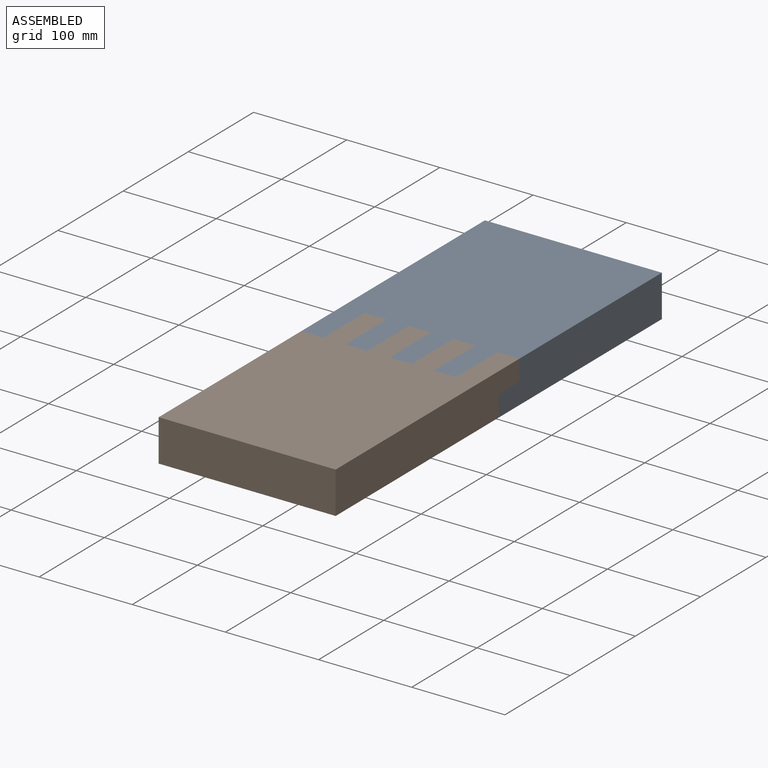
[diagram: assembled view]
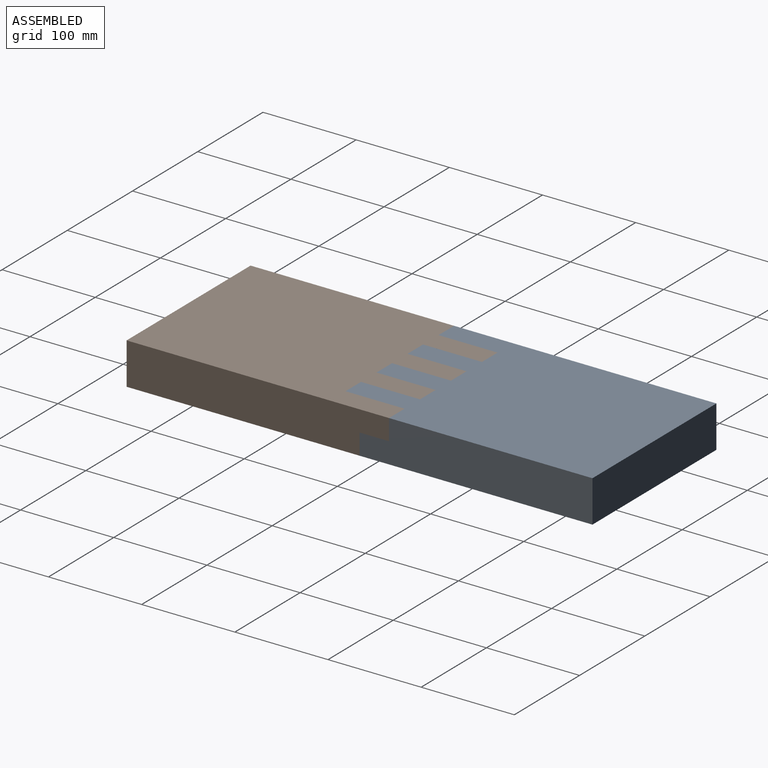
[diagram: assembled view, second angle]
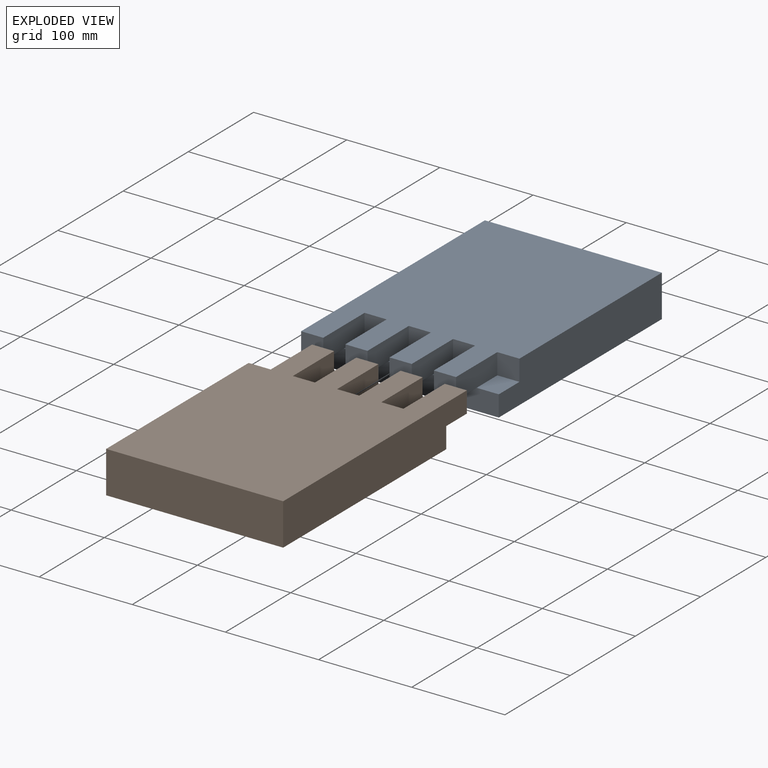
[diagram: exploded view]
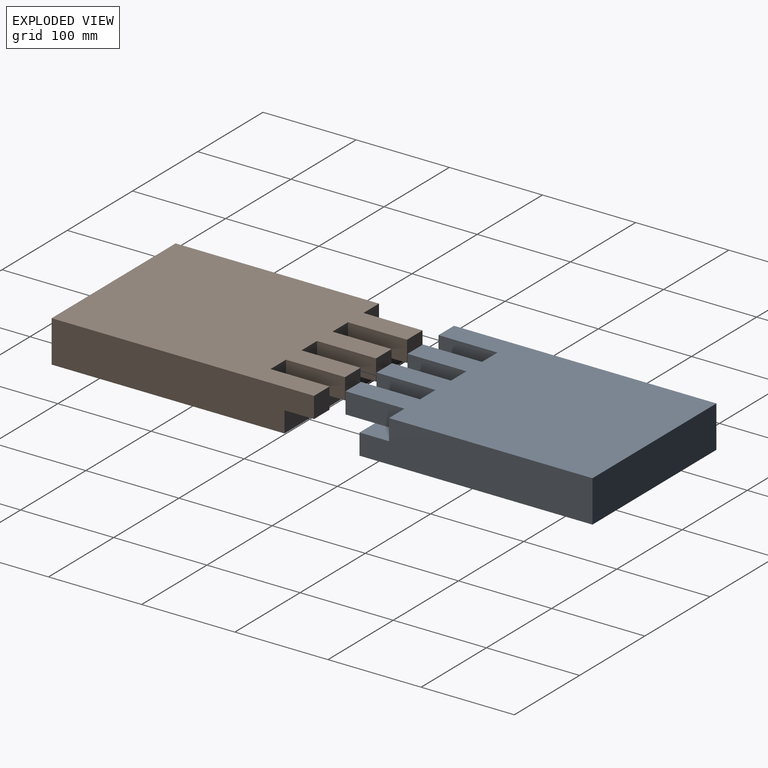
[diagram: exploded view, second angle]
ASSEMBLY  parts=2 mates=4
PART A: 29 faces, bbox 190x281.7x45 mm
  f0: plane 31.67x23.75mm, normal (0,0,-1), area 752.1mm2, adj f3,f4,f5,f26
  f1: plane 31.67x23.75mm, normal (0,0,-1), area 752.1mm2, adj f7,f8,f9,f26
  f2: plane 31.67x23.75mm, normal (0,0,-1), area 752.1mm2, adj f11,f12,f13,f26
  f3: plane 281.67x45mm, normal (-1,0,0), area 11962.5mm2, adj f0,f4,f20,f21,f26,f27
  f4: plane 23.75x22.5mm, normal (0,-1,0), area 534.4mm2, adj f0,f3,f5,f21
  f5: plane 63.33x22.5mm, normal (1,0,0), area 1425mm2, adj f0,f4,f6,f21,f28
  f6: plane 23.75x22.5mm, normal (0,-1,0), area 534.4mm2, adj f5,f7,f21,f28
  f7: plane 63.33x22.5mm, normal (-1,0,0), area 1425mm2, adj f1,f6,f8,f21,f28
  f8: plane 23.75x22.5mm, normal (0,-1,0), area 534.4mm2, adj f1,f7,f9,f21
  f9: plane 63.33x22.5mm, normal (1,0,0), area 1425mm2, adj f1,f8,f10,f21,f25
  f10: plane 23.75x22.5mm, normal (0,-1,0), area 534.4mm2, adj f9,f11,f21,f25
  f11: plane 63.33x22.5mm, normal (-1,0,0), area 1425mm2, adj f2,f10,f12,f21,f25
  f12: plane 23.75x22.5mm, normal (0,-1,0), area 534.4mm2, adj f2,f11,f13,f21
  f13: plane 63.33x22.5mm, normal (1,0,0), area 1425mm2, adj f2,f12,f14,f21,f24
  f14: plane 23.75x22.5mm, normal (0,-1,0), area 534.4mm2, adj f13,f15,f21,f24
  f15: plane 63.33x22.5mm, normal (-1,0,0), area 1425mm2, adj f14,f16,f21,f22,f24
  f16: plane 23.75x22.5mm, normal (0,-1,0), area 534.4mm2, adj f15,f17,f21,f22
  f17: plane 63.33x22.5mm, normal (1,0,0), area 1425mm2, adj f16,f18,f21,f22,f23
  f18: plane 23.75x22.5mm, normal (0,-1,0), area 534.4mm2, adj f17,f19,f21,f23
  f19: plane 250x45mm, normal (1,0,0), area 10537.5mm2, adj f18,f20,f21,f23,f26,f27
  f20: plane 190x45mm, normal (0,1,0), area 8550mm2, adj f3,f19,f21,f27
  f21: plane 281.67x190mm, normal (0,0,1), area 47500mm2, adj f3,f4,f5,f6,f7,f8,f9,f10
  f22: plane 31.67x23.75mm, normal (0,0,-1), area 752.1mm2, adj f15,f16,f17,f26
  f23: plane 31.67x23.75mm, normal (0,0,1), area 752.1mm2, adj f17,f18,f19,f26
  f24: plane 31.67x23.75mm, normal (0,0,1), area 752.1mm2, adj f13,f14,f15,f26
  f25: plane 31.67x23.75mm, normal (0,0,1), area 752.1mm2, adj f9,f10,f11,f26
  f26: plane 190x22.5mm, normal (0,-1,0), area 4275mm2, adj f0,f1,f2,f3,f19,f22,f23,f24
  f27: plane 250x190mm, normal (0,0,-1), area 47500mm2, adj f3,f19,f20,f26
  f28: plane 31.67x23.75mm, normal (0,0,1), area 752.1mm2, adj f5,f6,f7,f26
PART B: 29 faces, bbox 190x281.7x45 mm
  f0: plane 31.67x23.75mm, normal (0,0,-1), area 752.1mm2, adj f16,f17,f18,f27
  f1: plane 31.67x23.75mm, normal (0,0,-1), area 752.1mm2, adj f12,f13,f14,f27
  f2: plane 31.67x23.75mm, normal (0,0,-1), area 752.1mm2, adj f8,f9,f10,f27
  f3: plane 31.67x23.75mm, normal (0,0,-1), area 752.1mm2, adj f4,f5,f6,f27
  f4: plane 281.67x45mm, normal (1,0,0), area 11962.5mm2, adj f3,f5,f21,f22,f27,f28
  f5: plane 23.75x22.5mm, normal (0,1,0), area 534.4mm2, adj f3,f4,f6,f22
  f6: plane 63.33x22.5mm, normal (-1,0,0), area 1425mm2, adj f3,f5,f7,f22,f26
  f7: plane 23.75x22.5mm, normal (0,1,0), area 534.4mm2, adj f6,f8,f22,f26
  f8: plane 63.33x22.5mm, normal (1,0,0), area 1425mm2, adj f2,f7,f9,f22,f26
  f9: plane 23.75x22.5mm, normal (0,1,0), area 534.4mm2, adj f2,f8,f10,f22
  f10: plane 63.33x22.5mm, normal (-1,0,0), area 1425mm2, adj f2,f9,f11,f22,f25
  f11: plane 23.75x22.5mm, normal (0,1,0), area 534.4mm2, adj f10,f12,f22,f25
  f12: plane 63.33x22.5mm, normal (1,0,0), area 1425mm2, adj f1,f11,f13,f22,f25
  f13: plane 23.75x22.5mm, normal (0,1,0), area 534.4mm2, adj f1,f12,f14,f22
  f14: plane 63.33x22.5mm, normal (-1,0,0), area 1425mm2, adj f1,f13,f15,f22,f24
  f15: plane 23.75x22.5mm, normal (0,1,0), area 534.4mm2, adj f14,f16,f22,f24
  f16: plane 63.33x22.5mm, normal (1,0,0), area 1425mm2, adj f0,f15,f17,f22,f24
  f17: plane 23.75x22.5mm, normal (0,1,0), area 534.4mm2, adj f0,f16,f18,f22
  f18: plane 63.33x22.5mm, normal (-1,0,0), area 1425mm2, adj f0,f17,f19,f22,f23
  f19: plane 23.75x22.5mm, normal (0,1,0), area 534.4mm2, adj f18,f20,f22,f23
  f20: plane 250x45mm, normal (-1,0,0), area 10537.5mm2, adj f19,f21,f22,f23,f27,f28
  f21: plane 190x45mm, normal (0,-1,0), area 8550mm2, adj f4,f20,f22,f28
  f22: plane 281.67x190mm, normal (0,0,1), area 47500mm2, adj f4,f5,f6,f7,f8,f9,f10,f11
  f23: plane 31.67x23.75mm, normal (0,0,1), area 752.1mm2, adj f18,f19,f20,f27
  f24: plane 31.67x23.75mm, normal (0,0,1), area 752.1mm2, adj f14,f15,f16,f27
  f25: plane 31.67x23.75mm, normal (0,0,1), area 752.1mm2, adj f10,f11,f12,f27
  f26: plane 31.67x23.75mm, normal (0,0,1), area 752.1mm2, adj f6,f7,f8,f27
  f27: plane 190x22.5mm, normal (0,1,0), area 4275mm2, adj f0,f1,f2,f3,f4,f20,f23,f24
  f28: plane 250x190mm, normal (0,0,-1), area 47500mm2, adj f4,f20,f21,f27
PLACE A t=(48.4,83,13.22)mm
PLACE B t=(48.4,83,13.22)mm
MATE parallel B.f19 <-> A.f4  axis (0,1,0) through (-227.35,57.68,24.47)mm
MATE planar B.f27 <-> A.f26  axis (0,1,0) through (-144.23,89.35,1.97)mm
MATE parallel B.f18 <-> A.f5  axis (-1,0,0) through (-215.48,89.35,24.47)mm
MATE fastened A.f6 <-> B.f17  axis (0,-1,0) through (-203.6,121.02,24.47)mm
